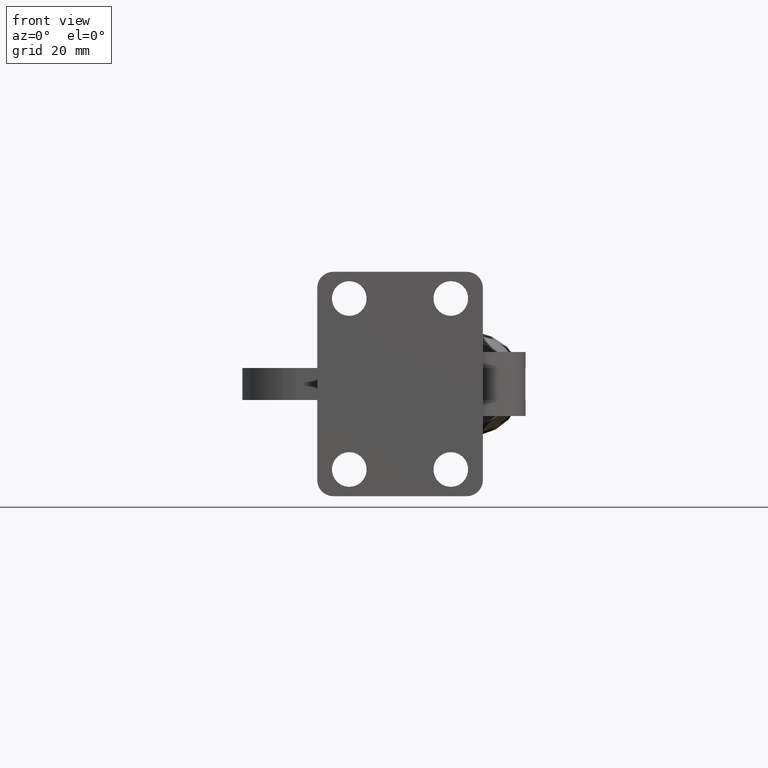
[diagram: clean part render]
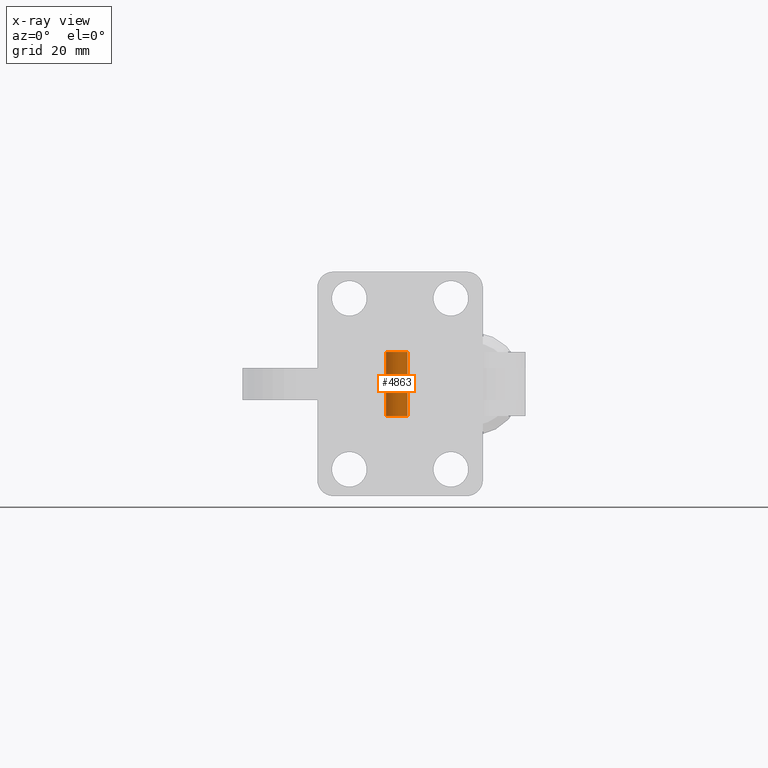
[diagram: x-ray — body ghosted, one internal face saturated and labeled with its STEP entity id]
A machine part, front view, then the same camera in x-ray: the body is ghosted and one INTERNAL B-rep face — a face not visible from any outside direction — is saturated and labeled: STEP entity #4863.
In plain terms, the highlighted cylindrical surface (edge-blend (fillet) strip) has radius 2 mm, axis along (0, 0, 1).
Its self-contained STEP definition (entity closure, byte-faithful):
#362 = EDGE_CURVE ( 'NONE', #4061, #7674, #8894, .T. ) ;
#412 = DIRECTION ( 'NONE',  ( 1.000000000000000000, 0.0000000000000000000, 0.0000000000000000000 ) ) ;
#536 = AXIS2_PLACEMENT_3D ( 'NONE', #8792, #4621, #412 ) ;
#676 = CARTESIAN_POINT ( 'NONE',  ( -0.1369012826165859300, 39.99976572479905500, -6.000000000000000000 ) ) ;
#1041 = ORIENTED_EDGE ( 'NONE', *, *, #1265, .F. ) ;
#1218 = CARTESIAN_POINT ( 'NONE',  ( -2.136901282616586500, 39.99976572479905500, -13.07106781186548100 ) ) ;
#1265 = EDGE_CURVE ( 'NONE', #4061, #7976, #5713, .T. ) ;
#1383 = DIRECTION ( 'NONE',  ( 1.000000000000000000, 0.0000000000000000000, 0.0000000000000000000 ) ) ;
#1956 = DIRECTION ( 'NONE',  ( 1.000000000000000000, 0.0000000000000000000, 0.0000000000000000000 ) ) ;
#2437 = ORIENTED_EDGE ( 'NONE', *, *, #5843, .T. ) ;
#2650 = CARTESIAN_POINT ( 'NONE',  ( -0.1369012826165859300, 39.99976572479905500, -13.07106781186548100 ) ) ;
#2879 = CIRCLE ( 'NONE', #536, 2.000000000000000400 ) ;
#3089 = CARTESIAN_POINT ( 'NONE',  ( -2.136901282616586500, 39.99976572479905500, -6.000000000000000000 ) ) ;
#3107 = CYLINDRICAL_SURFACE ( 'NONE', #3168, 2.000000000000000400 ) ;
#3168 = AXIS2_PLACEMENT_3D ( 'NONE', #2650, #8947, #1956 ) ;
#3197 = VECTOR ( 'NONE', #5410, 1000.000000000000000 ) ;
#3359 = CARTESIAN_POINT ( 'NONE',  ( -2.136901282616586500, 39.99976572479905500, 6.000000000000000000 ) ) ;
#3841 = VECTOR ( 'NONE', #4186, 1000.000000000000000 ) ;
#4061 = VERTEX_POINT ( 'NONE', #8896 ) ;
#4186 = DIRECTION ( 'NONE',  ( 0.0000000000000000000, 0.0000000000000000000, 1.000000000000000000 ) ) ;
#4496 = CARTESIAN_POINT ( 'NONE',  ( 1.863098717383414600, 39.99976572479905500, 6.000000000000000000 ) ) ;
#4520 = LINE ( 'NONE', #1218, #3197 ) ;
#4621 = DIRECTION ( 'NONE',  ( 0.0000000000000000000, 0.0000000000000000000, 1.000000000000000000 ) ) ;
#4863 = ADVANCED_FACE ( 'NONE', ( #6798 ), #3107, .F. ) ;
#5410 = DIRECTION ( 'NONE',  ( 0.0000000000000000000, 0.0000000000000000000, 1.000000000000000000 ) ) ;
#5575 = DIRECTION ( 'NONE',  ( 4.366125978806254100E-022, 1.000783505723065100E-022, -1.000000000000000000 ) ) ;
#5713 = LINE ( 'NONE', #8773, #3841 ) ;
#5843 = EDGE_CURVE ( 'NONE', #5970, #7976, #2879, .T. ) ;
#5900 = EDGE_CURVE ( 'NONE', #7674, #5970, #4520, .T. ) ;
#5970 = VERTEX_POINT ( 'NONE', #3359 ) ;
#6184 = ORIENTED_EDGE ( 'NONE', *, *, #5900, .T. ) ;
#6798 = FACE_OUTER_BOUND ( 'NONE', #8446, .T. ) ;
#7389 = ORIENTED_EDGE ( 'NONE', *, *, #362, .T. ) ;
#7674 = VERTEX_POINT ( 'NONE', #3089 ) ;
#7976 = VERTEX_POINT ( 'NONE', #4496 ) ;
#8336 = AXIS2_PLACEMENT_3D ( 'NONE', #676, #5575, #1383 ) ;
#8446 = EDGE_LOOP ( 'NONE', ( #7389, #6184, #2437, #1041 ) ) ;
#8773 = CARTESIAN_POINT ( 'NONE',  ( 1.863098717383414600, 39.99976572479905500, -13.07106781186548100 ) ) ;
#8792 = CARTESIAN_POINT ( 'NONE',  ( -0.1369012826165859300, 39.99976572479905500, 6.000000000000000000 ) ) ;
#8894 = CIRCLE ( 'NONE', #8336, 2.000000000000000400 ) ;
#8896 = CARTESIAN_POINT ( 'NONE',  ( 1.863098717383414600, 39.99976572479905500, -6.000000000000000000 ) ) ;
#8947 = DIRECTION ( 'NONE',  ( 0.0000000000000000000, 0.0000000000000000000, 1.000000000000000000 ) ) ;